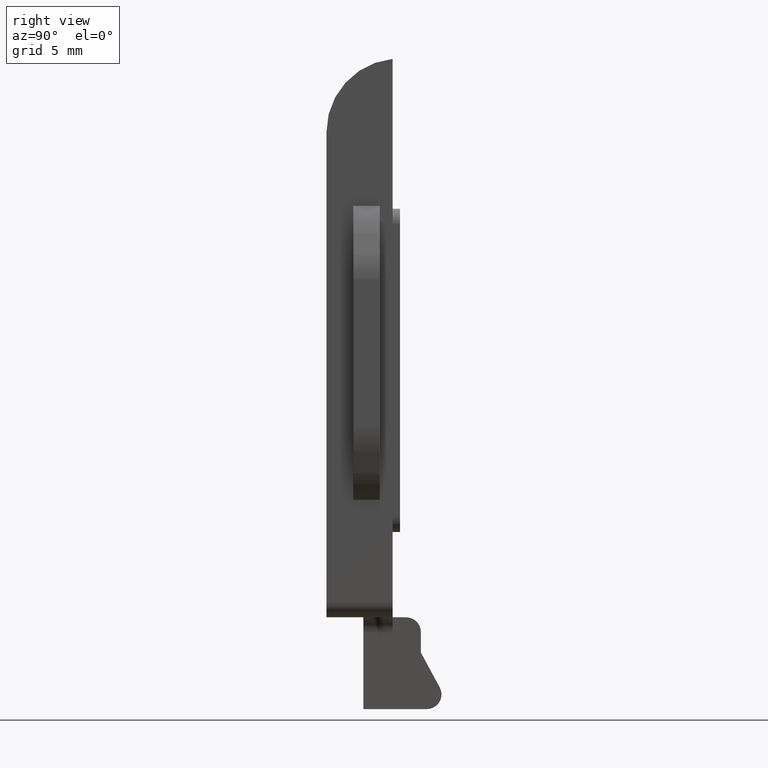
[diagram: clean part render]
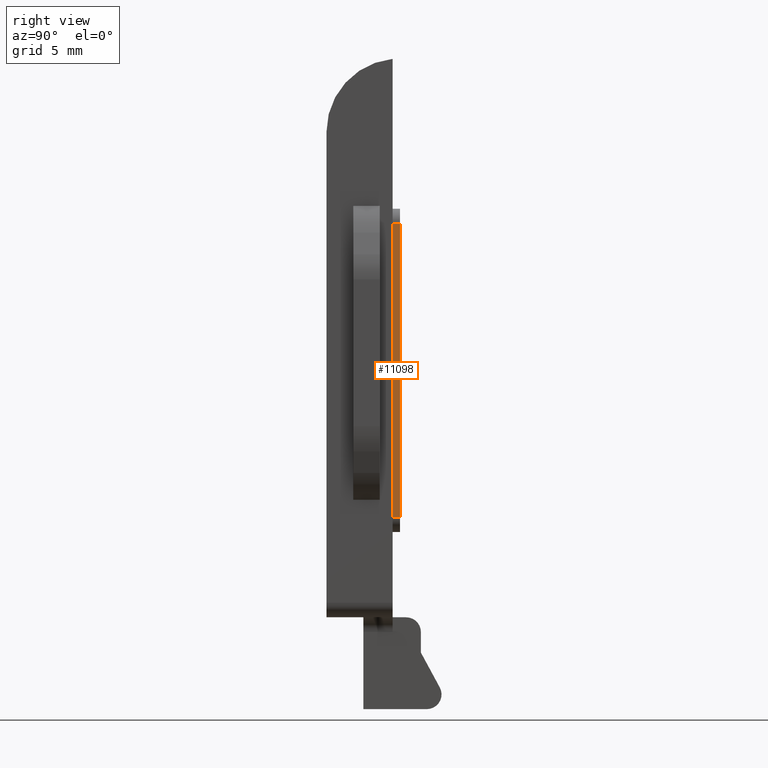
[diagram: same view with one face highlighted and labeled with its STEP entity id]
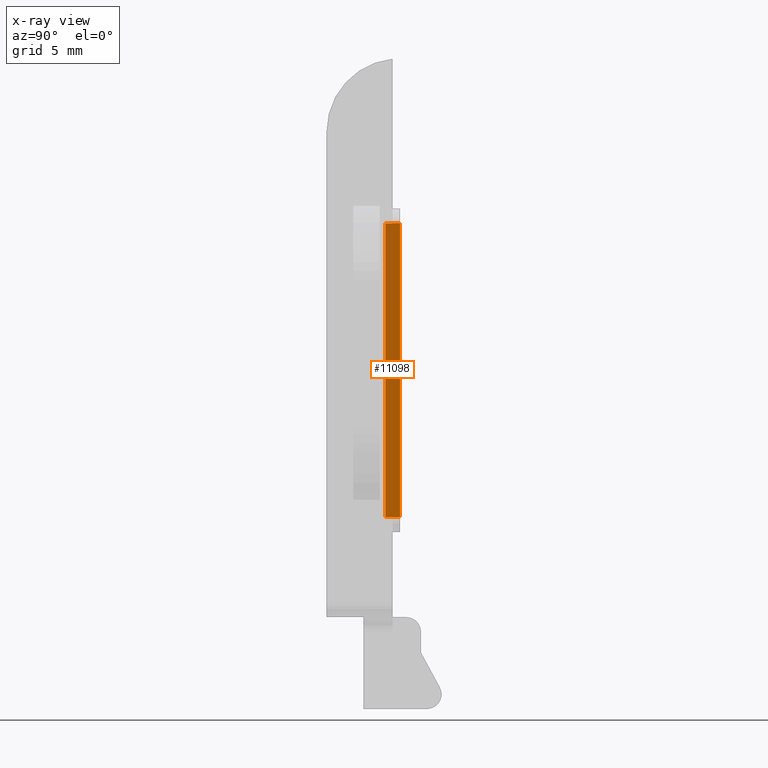
[diagram: x-ray of the same camera — body ghosted, the highlighted face saturated]
A machine part, right view. The second image highlights one B-rep face of the part: STEP entity #11098.
The next image is the same camera in x-ray: the body ghosted, the highlighted face saturated — about 0% of this face is hidden behind the body in this view.
In plain terms, the highlighted planar face has unit normal (-1, 0, 0).
Its self-contained STEP definition (entity closure, byte-faithful):
#36 = VECTOR ( 'NONE', #11539, 1000.000000000000000 ) ;
#178 = FACE_OUTER_BOUND ( 'NONE', #9232, .T. ) ;
#335 = PLANE ( 'NONE',  #4232 ) ;
#687 = VECTOR ( 'NONE', #14836, 1000.000000000000000 ) ;
#1086 = VERTEX_POINT ( 'NONE', #4642 ) ;
#1117 = LINE ( 'NONE', #5614, #1307 ) ;
#1307 = VECTOR ( 'NONE', #9377, 1000.000000000000000 ) ;
#1465 = LINE ( 'NONE', #4621, #687 ) ;
#2724 = VECTOR ( 'NONE', #7249, 1000.000000000000000 ) ;
#2864 = DIRECTION ( 'NONE',  ( 1.577021341797097560E-16, 0.000000000000000000, 1.000000000000000000 ) ) ;
#2961 = ORIENTED_EDGE ( 'NONE', *, *, #5943, .F. ) ;
#4232 = AXIS2_PLACEMENT_3D ( 'NONE', #10474, #9157, #2864 ) ;
#4621 = CARTESIAN_POINT ( 'NONE',  ( 7.500000000000000888, 1.000000000000000000, -9.999999999999994671 ) ) ;
#4642 = CARTESIAN_POINT ( 'NONE',  ( 7.500000000000000888, 0.000000000000000000, -9.999999999999994671 ) ) ;
#5614 = CARTESIAN_POINT ( 'NONE',  ( 7.500000000000004441, 1.000000000000000000, 10.00000000000000355 ) ) ;
#5707 = VERTEX_POINT ( 'NONE', #14929 ) ;
#5943 = EDGE_CURVE ( 'NONE', #5707, #11967, #9938, .T. ) ;
#7249 = DIRECTION ( 'NONE',  ( -1.577021341797097560E-16, -0.000000000000000000, -1.000000000000000000 ) ) ;
#7474 = CARTESIAN_POINT ( 'NONE',  ( 7.500000000000000888, 1.000000000000000000, -10.99999999999999467 ) ) ;
#9157 = DIRECTION ( 'NONE',  ( -1.000000000000000000, 0.000000000000000000, 1.577021341797097560E-16 ) ) ;
#9232 = EDGE_LOOP ( 'NONE', ( #15637, #13165, #2961, #10101 ) ) ;
#9377 = DIRECTION ( 'NONE',  ( 0.000000000000000000, -1.000000000000000000, 0.000000000000000000 ) ) ;
#9938 = LINE ( 'NONE', #7474, #36 ) ;
#10101 = ORIENTED_EDGE ( 'NONE', *, *, #13703, .T. ) ;
#10474 = CARTESIAN_POINT ( 'NONE',  ( 7.500000000000000888, 1.000000000000000000, -10.99999999999999467 ) ) ;
#10832 = VERTEX_POINT ( 'NONE', #14017 ) ;
#10846 = LINE ( 'NONE', #11038, #2724 ) ;
#11038 = CARTESIAN_POINT ( 'NONE',  ( 7.500000000000000888, 0.000000000000000000, -10.99999999999999467 ) ) ;
#11098 = ADVANCED_FACE ( 'NONE', ( #178 ), #335, .F. ) ;
#11404 = EDGE_CURVE ( 'NONE', #10832, #1086, #10846, .T. ) ;
#11539 = DIRECTION ( 'NONE',  ( -1.577021341797097560E-16, -0.000000000000000000, -1.000000000000000000 ) ) ;
#11967 = VERTEX_POINT ( 'NONE', #13541 ) ;
#13165 = ORIENTED_EDGE ( 'NONE', *, *, #15351, .T. ) ;
#13541 = CARTESIAN_POINT ( 'NONE',  ( 7.500000000000000888, 1.000000000000000000, -9.999999999999994671 ) ) ;
#13703 = EDGE_CURVE ( 'NONE', #5707, #10832, #1117, .T. ) ;
#14017 = CARTESIAN_POINT ( 'NONE',  ( 7.500000000000004441, 0.000000000000000000, 10.00000000000000355 ) ) ;
#14836 = DIRECTION ( 'NONE',  ( -0.000000000000000000, 1.000000000000000000, -0.000000000000000000 ) ) ;
#14929 = CARTESIAN_POINT ( 'NONE',  ( 7.500000000000004441, 1.000000000000000000, 10.00000000000000355 ) ) ;
#15351 = EDGE_CURVE ( 'NONE', #1086, #11967, #1465, .T. ) ;
#15637 = ORIENTED_EDGE ( 'NONE', *, *, #11404, .T. ) ;